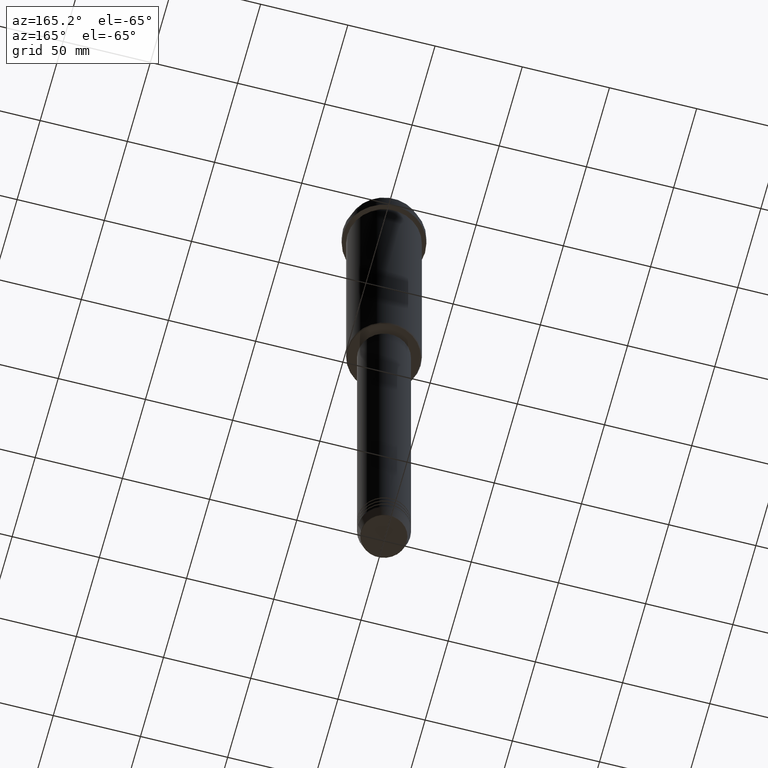
[diagram: clean part render]
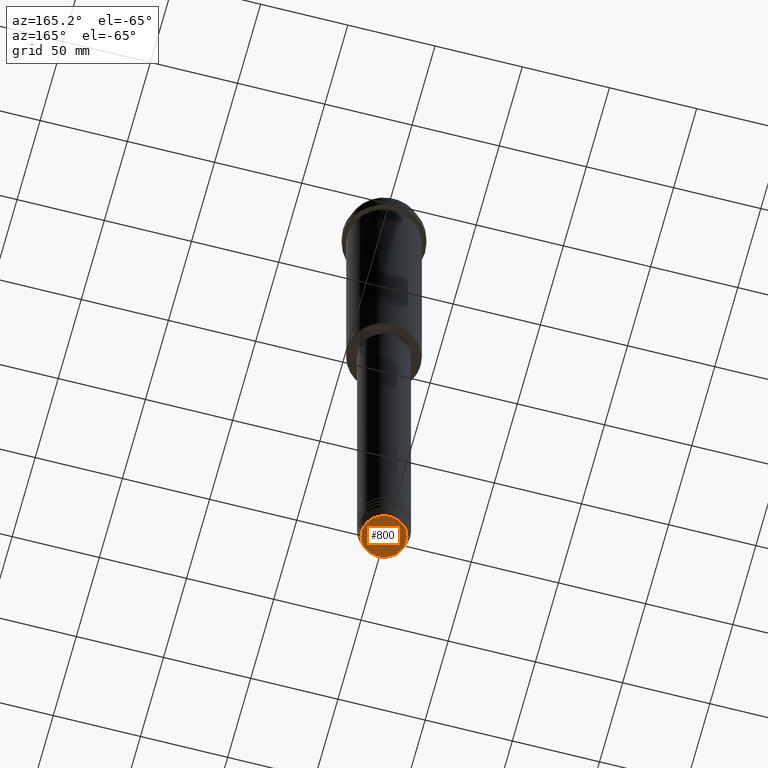
[diagram: same view with one face highlighted and labeled with its STEP entity id]
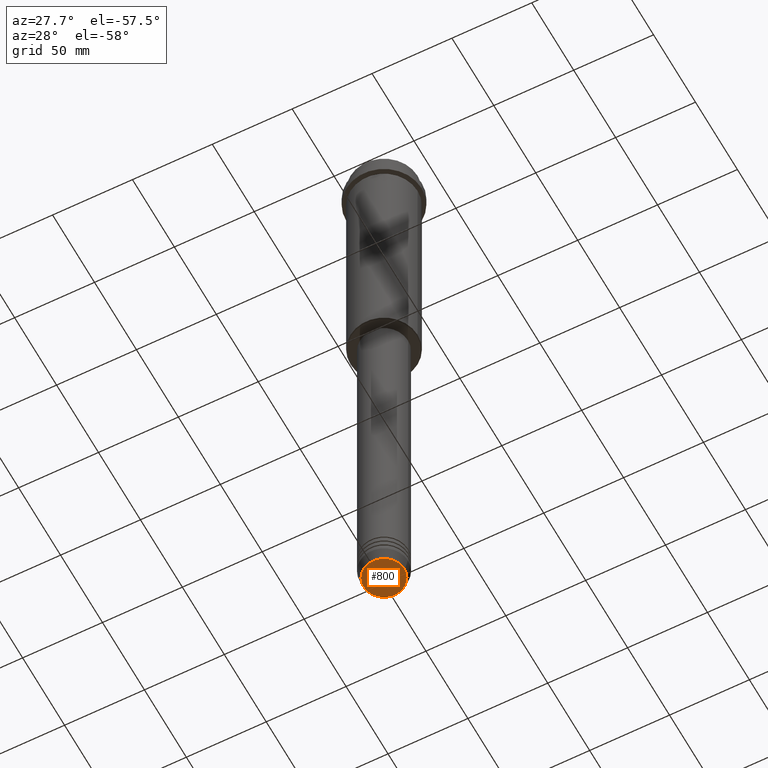
[diagram: same view with one face highlighted and labeled with its STEP entity id]
A machine part, auxiliary view. The second image highlights one B-rep face of the part: STEP entity #800.
A second angle (auxiliary view) of the same face is appended — the face is thin or edge-on in the first view.
In plain terms, the highlighted planar face has unit normal (0, -0, 1).
Its self-contained STEP definition (entity closure, byte-faithful):
#1 = DIRECTION ( 'NONE',  ( 1.000000000000000000, 0.000000000000000000, 0.000000000000000000 ) ) ;
#57 = AXIS2_PLACEMENT_3D ( 'NONE', #422, #981, #1 ) ;
#126 = CARTESIAN_POINT ( 'NONE',  ( 0.000000000000000000, 0.000000000000000000, -399.9999999999999432 ) ) ;
#213 = DIRECTION ( 'NONE',  ( 1.000000000000000000, 0.000000000000000000, 0.000000000000000000 ) ) ;
#226 = ORIENTED_EDGE ( 'NONE', *, *, #1011, .T. ) ;
#382 = VERTEX_POINT ( 'NONE', #598 ) ;
#422 = CARTESIAN_POINT ( 'NONE',  ( 0.000000000000000000, 0.000000000000000000, -399.9999999999999432 ) ) ;
#449 = CARTESIAN_POINT ( 'NONE',  ( 12.74069215899265828, 0.000000000000000000, -399.9999999999999432 ) ) ;
#479 = EDGE_LOOP ( 'NONE', ( #1039, #226 ) ) ;
#522 = CARTESIAN_POINT ( 'NONE',  ( 0.000000000000000000, 0.000000000000000000, -399.9999999999999432 ) ) ;
#523 = VERTEX_POINT ( 'NONE', #449 ) ;
#588 = EDGE_CURVE ( 'NONE', #523, #382, #1323, .T. ) ;
#598 = CARTESIAN_POINT ( 'NONE',  ( -12.74069215899265828, 1.589857736427680246E-15, -399.9999999999999432 ) ) ;
#617 = DIRECTION ( 'NONE',  ( 0.000000000000000000, -0.000000000000000000, 1.000000000000000000 ) ) ;
#626 = DIRECTION ( 'NONE',  ( 1.000000000000000000, 0.000000000000000000, 0.000000000000000000 ) ) ;
#752 = FACE_OUTER_BOUND ( 'NONE', #479, .T. ) ;
#800 = ADVANCED_FACE ( 'NONE', ( #752 ), #1392, .F. ) ;
#855 = CIRCLE ( 'NONE', #968, 12.74069215899265828 ) ;
#865 = DIRECTION ( 'NONE',  ( 0.000000000000000000, 0.000000000000000000, -1.000000000000000000 ) ) ;
#968 = AXIS2_PLACEMENT_3D ( 'NONE', #126, #865, #213 ) ;
#981 = DIRECTION ( 'NONE',  ( 0.000000000000000000, 0.000000000000000000, -1.000000000000000000 ) ) ;
#997 = AXIS2_PLACEMENT_3D ( 'NONE', #522, #617, #626 ) ;
#1011 = EDGE_CURVE ( 'NONE', #382, #523, #855, .T. ) ;
#1039 = ORIENTED_EDGE ( 'NONE', *, *, #588, .T. ) ;
#1323 = CIRCLE ( 'NONE', #57, 12.74069215899265828 ) ;
#1392 = PLANE ( 'NONE',  #997 ) ;